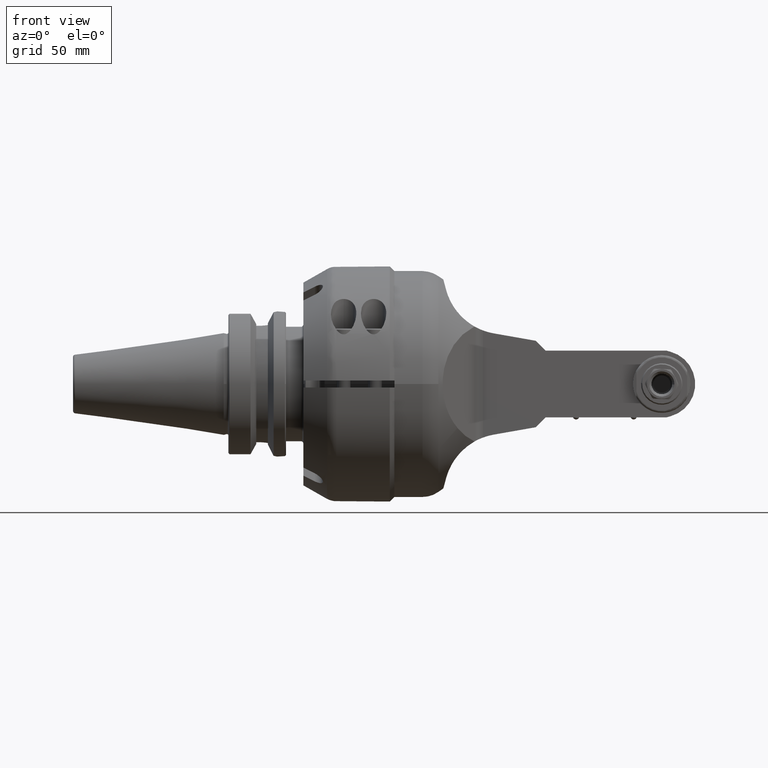
[diagram: clean part render]
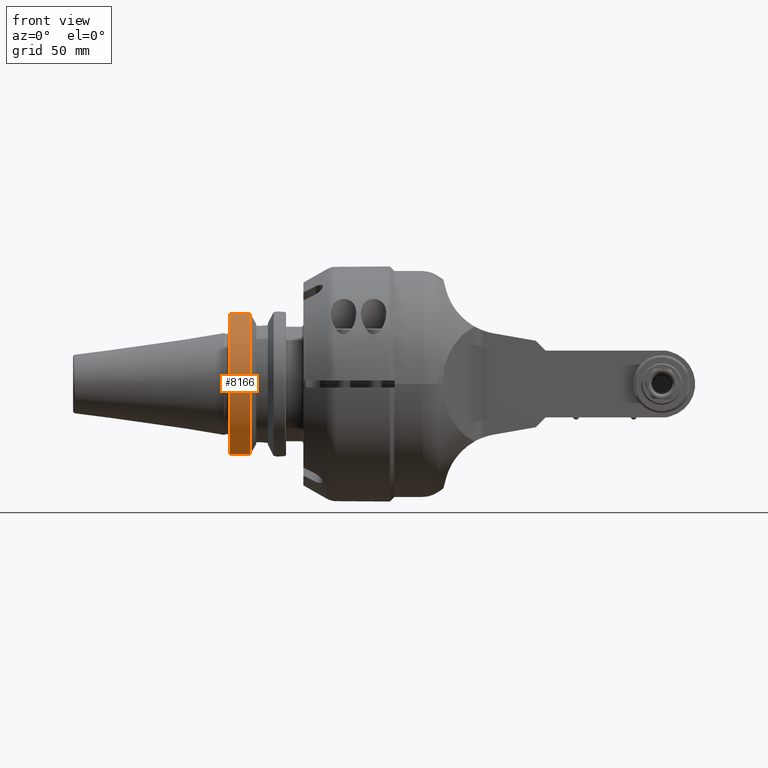
[diagram: same view with one face highlighted and labeled with its STEP entity id]
A machine part, front view. The second image highlights one B-rep face of the part: STEP entity #8166.
In plain terms, the highlighted cylindrical surface (partial cylindrical patch) has radius 31.5 mm, axis along (1, 0, 0).
Its self-contained STEP definition (entity closure, byte-faithful):
#586=CYLINDRICAL_SURFACE('',#9026,1.24015748031496);
#914=CIRCLE('',#9025,1.24015748031496);
#915=CIRCLE('',#9027,1.24015748031496);
#1377=FACE_OUTER_BOUND('',#1936,.T.);
#1936=EDGE_LOOP('',(#7012,#7013,#7014,#7015));
#2516=LINE('',#43847,#3088);
#2517=LINE('',#43848,#3089);
#3088=VECTOR('',#11067,0.358261585261934);
#3089=VECTOR('',#11068,0.358261585235872);
#3814=VERTEX_POINT('',#43820);
#3815=VERTEX_POINT('',#43821);
#3816=VERTEX_POINT('',#43844);
#3817=VERTEX_POINT('',#43845);
#4910=EDGE_CURVE('',#3814,#3815,#914,.T.);
#4913=EDGE_CURVE('',#3816,#3817,#915,.T.);
#4914=EDGE_CURVE('',#3816,#3815,#2516,.T.);
#4915=EDGE_CURVE('',#3814,#3817,#2517,.T.);
#7012=ORIENTED_EDGE('',*,*,#4913,.F.);
#7013=ORIENTED_EDGE('',*,*,#4914,.T.);
#7014=ORIENTED_EDGE('',*,*,#4910,.F.);
#7015=ORIENTED_EDGE('',*,*,#4915,.T.);
#8166=ADVANCED_FACE('',(#1377),#586,.T.);
#9025=AXIS2_PLACEMENT_3D('',#43822,#11061,#11062);
#9026=AXIS2_PLACEMENT_3D('',#43843,#11063,#11064);
#9027=AXIS2_PLACEMENT_3D('',#43846,#11065,#11066);
#11061=DIRECTION('center_axis',(-1.,0.,0.));
#11062=DIRECTION('ref_axis',(0.,-0.255555555555586,-0.966794372151946));
#11063=DIRECTION('center_axis',(1.,0.,0.));
#11064=DIRECTION('ref_axis',(0.,-1.,0.));
#11065=DIRECTION('center_axis',(1.,0.,0.));
#11066=DIRECTION('ref_axis',(0.,-1.,0.));
#11067=DIRECTION('',(-0.999999999999985,1.67431413362697E-7,4.42576437224693E-8));
#11068=DIRECTION('',(0.999999999999985,-1.67422253072997E-7,4.42552215923993E-8));
#43820=CARTESIAN_POINT('',(-3.28740157480315,-0.316929133858268,-1.19897727255079));
#43821=CARTESIAN_POINT('',(-3.28740157480315,-0.316929133858268,1.19897727255079));
#43822=CARTESIAN_POINT('Origin',(-3.28740157480315,0.,0.));
#43843=CARTESIAN_POINT('Origin',(-2.81496062992126,0.,0.));
#43844=CARTESIAN_POINT('',(-2.92913944744739,-0.316929164022645,1.19897726167437));
#43845=CARTESIAN_POINT('',(-2.9291396491581,-0.31692915949186,-1.19897730146929));
#43846=CARTESIAN_POINT('Origin',(-2.92913944906772,0.,0.));
#43847=CARTESIAN_POINT('',(-2.92913998954134,-0.31692919384252,1.19897725669488));
#43848=CARTESIAN_POINT('',(-3.28740157480315,-0.316929133858268,-1.19897727255079));